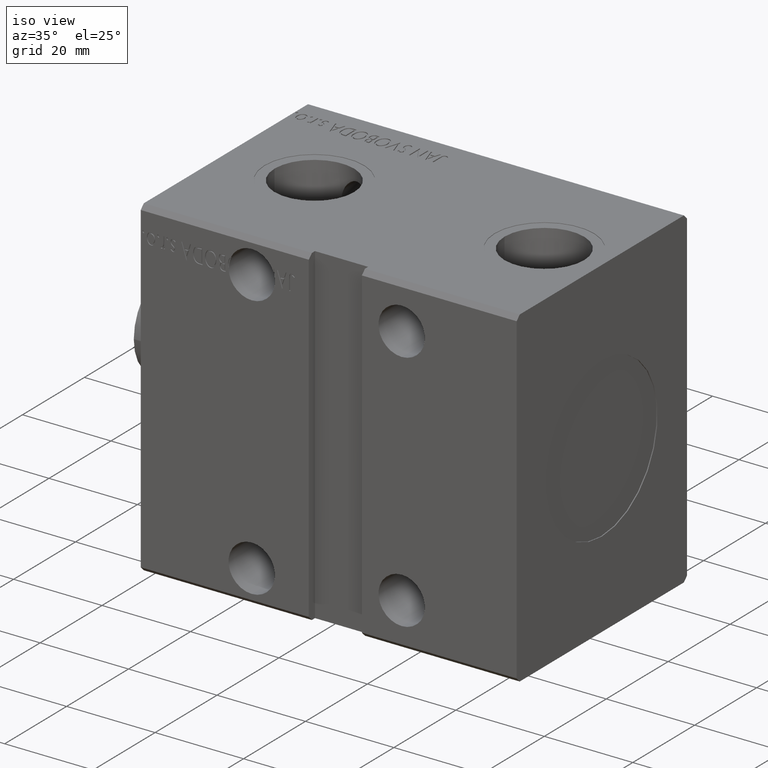
[diagram: clean part render]
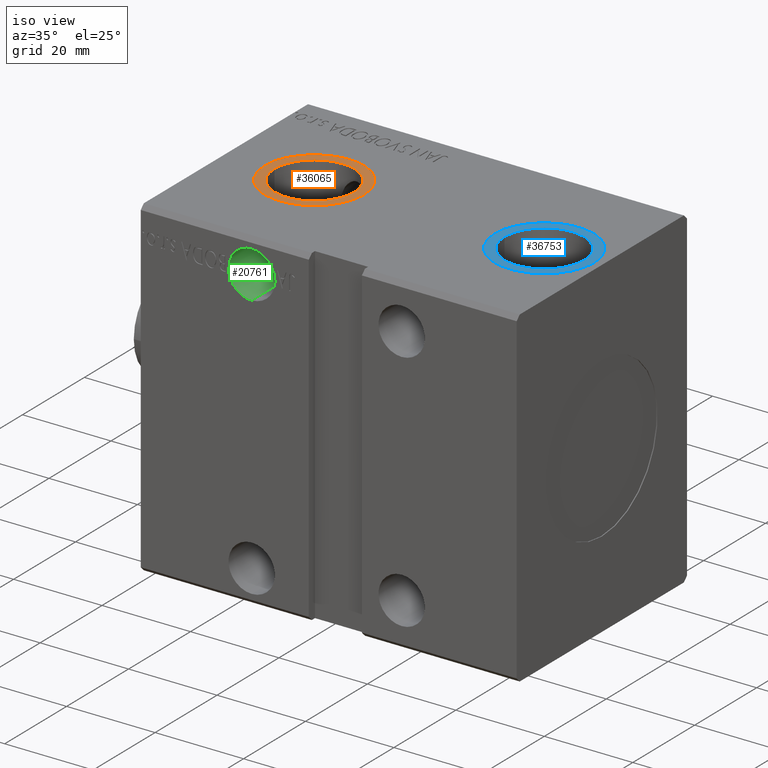
[diagram: same view with three faces highlighted in distinct colors, each labeled with its STEP entity id]
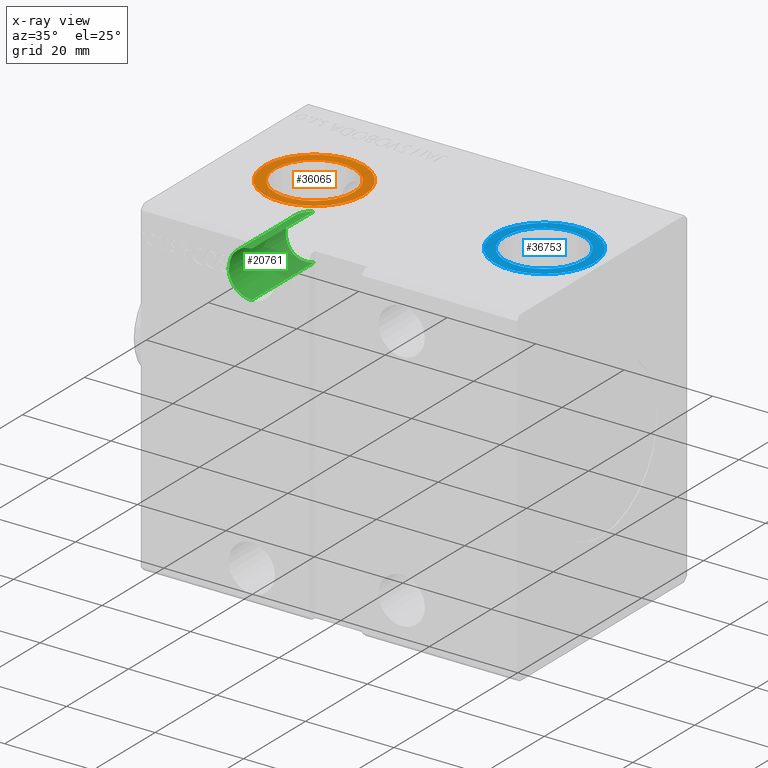
[diagram: x-ray of the same camera — body ghosted, the three highlighted faces saturated]
A machine part, iso view with three faces highlighted in distinct colors.
The next image is the same camera in x-ray (body ghosted, the three faces saturated) — at least one of them is partly hidden behind the body in this view.
Their STEP definitions:

[orange] entity #36065 — the highlighted planar face has unit normal (0, 0, 1).
#1152 = CIRCLE ( 'NONE', #35760, 11.24999999999999645 ) ;
#1271 = ORIENTED_EDGE ( 'NONE', *, *, #25907, .T. ) ;
#1363 = VERTEX_POINT ( 'NONE', #28284 ) ;
#2680 = CARTESIAN_POINT ( 'NONE',  ( 28.99999999999999645, 2.602085213965210642E-15, 37.40000000000000568 ) ) ;
#5207 = DIRECTION ( 'NONE',  ( 0.000000000000000000, 0.000000000000000000, 1.000000000000000000 ) ) ;
#5851 = AXIS2_PLACEMENT_3D ( 'NONE', #22002, #6452, #33855 ) ;
#6452 = DIRECTION ( 'NONE',  ( 0.000000000000000000, 0.000000000000000000, 1.000000000000000000 ) ) ;
#7076 = CARTESIAN_POINT ( 'NONE',  ( 19.99999999999999645, 2.602085213965210642E-15, 37.40000000000000568 ) ) ;
#7885 = DIRECTION ( 'NONE',  ( 0.000000000000000000, 0.000000000000000000, 1.000000000000000000 ) ) ;
#9097 = EDGE_LOOP ( 'NONE', ( #24672, #15954 ) ) ;
#9214 = FACE_OUTER_BOUND ( 'NONE', #10925, .T. ) ;
#10925 = EDGE_LOOP ( 'NONE', ( #36605, #1271 ) ) ;
#12945 = CARTESIAN_POINT ( 'NONE',  ( 8.749999999999998224, 3.979812863005982636E-15, 37.40000000000000568 ) ) ;
#14726 = CARTESIAN_POINT ( 'NONE',  ( 19.99999999999999645, 2.602085213965210642E-15, 37.40000000000000568 ) ) ;
#14860 = CIRCLE ( 'NONE', #32478, 11.24999999999999645 ) ;
#15350 = FACE_BOUND ( 'NONE', #9097, .T. ) ;
#15954 = ORIENTED_EDGE ( 'NONE', *, *, #33213, .F. ) ;
#16883 = DIRECTION ( 'NONE',  ( 1.000000000000000000, 0.000000000000000000, 0.000000000000000000 ) ) ;
#18405 = PLANE ( 'NONE',  #37852 ) ;
#19494 = AXIS2_PLACEMENT_3D ( 'NONE', #27116, #5207, #27319 ) ;
#20891 = DIRECTION ( 'NONE',  ( 0.000000000000000000, 0.000000000000000000, 1.000000000000000000 ) ) ;
#21211 = VERTEX_POINT ( 'NONE', #12945 ) ;
#21700 = DIRECTION ( 'NONE',  ( 0.000000000000000000, 0.000000000000000000, 1.000000000000000000 ) ) ;
#22002 = CARTESIAN_POINT ( 'NONE',  ( 19.99999999999999645, 2.602085213965210642E-15, 37.40000000000000568 ) ) ;
#22214 = CIRCLE ( 'NONE', #5851, 9.000000000000001776 ) ;
#24672 = ORIENTED_EDGE ( 'NONE', *, *, #36955, .F. ) ;
#25907 = EDGE_CURVE ( 'NONE', #21211, #1363, #1152, .T. ) ;
#26050 = CIRCLE ( 'NONE', #19494, 9.000000000000001776 ) ;
#27116 = CARTESIAN_POINT ( 'NONE',  ( 19.99999999999999645, 2.602085213965210642E-15, 37.40000000000000568 ) ) ;
#27319 = DIRECTION ( 'NONE',  ( 1.000000000000000000, 0.000000000000000000, 0.000000000000000000 ) ) ;
#27643 = DIRECTION ( 'NONE',  ( 1.000000000000000000, 0.000000000000000000, -0.000000000000000000 ) ) ;
#28284 = CARTESIAN_POINT ( 'NONE',  ( 31.24999999999999289, 2.602085213965210642E-15, 37.40000000000000568 ) ) ;
#30620 = VERTEX_POINT ( 'NONE', #2680 ) ;
#30872 = CARTESIAN_POINT ( 'NONE',  ( 10.99999999999999467, 3.704267333197828553E-15, 37.40000000000000568 ) ) ;
#31502 = EDGE_CURVE ( 'NONE', #1363, #21211, #14860, .T. ) ;
#32478 = AXIS2_PLACEMENT_3D ( 'NONE', #37035, #20891, #36627 ) ;
#32738 = VERTEX_POINT ( 'NONE', #30872 ) ;
#33213 = EDGE_CURVE ( 'NONE', #32738, #30620, #26050, .T. ) ;
#33855 = DIRECTION ( 'NONE',  ( 1.000000000000000000, 0.000000000000000000, 0.000000000000000000 ) ) ;
#35760 = AXIS2_PLACEMENT_3D ( 'NONE', #7076, #7885, #16883 ) ;
#36065 = ADVANCED_FACE ( 'NONE', ( #15350, #9214 ), #18405, .T. ) ;
#36605 = ORIENTED_EDGE ( 'NONE', *, *, #31502, .T. ) ;
#36627 = DIRECTION ( 'NONE',  ( 1.000000000000000000, 0.000000000000000000, 0.000000000000000000 ) ) ;
#36955 = EDGE_CURVE ( 'NONE', #30620, #32738, #22214, .T. ) ;
#37035 = CARTESIAN_POINT ( 'NONE',  ( 19.99999999999999645, 2.602085213965210642E-15, 37.40000000000000568 ) ) ;
#37852 = AXIS2_PLACEMENT_3D ( 'NONE', #14726, #21700, #27643 ) ;

[blue] entity #36753 — the highlighted planar face has unit normal (0, 0, 1).
#391 = FACE_BOUND ( 'NONE', #6145, .T. ) ;
#1456 = EDGE_CURVE ( 'NONE', #37585, #21020, #34680, .T. ) ;
#1680 = DIRECTION ( 'NONE',  ( 0.000000000000000000, 0.000000000000000000, 1.000000000000000000 ) ) ;
#3040 = DIRECTION ( 'NONE',  ( 1.000000000000000000, 0.000000000000000000, -0.000000000000000000 ) ) ;
#6145 = EDGE_LOOP ( 'NONE', ( #23017, #37006 ) ) ;
#6156 = CIRCLE ( 'NONE', #36823, 11.24999999999999645 ) ;
#6725 = EDGE_CURVE ( 'NONE', #9850, #34091, #22425, .T. ) ;
#7161 = AXIS2_PLACEMENT_3D ( 'NONE', #25333, #9163, #3040 ) ;
#8147 = ORIENTED_EDGE ( 'NONE', *, *, #16743, .T. ) ;
#9163 = DIRECTION ( 'NONE',  ( 0.000000000000000000, 0.000000000000000000, 1.000000000000000000 ) ) ;
#9572 = FACE_OUTER_BOUND ( 'NONE', #22751, .T. ) ;
#9850 = VERTEX_POINT ( 'NONE', #19300 ) ;
#10680 = DIRECTION ( 'NONE',  ( 1.000000000000000000, 0.000000000000000000, 0.000000000000000000 ) ) ;
#12515 = CARTESIAN_POINT ( 'NONE',  ( 72.00000000000001421, -3.300664193009419462E-16, 37.40000000000000568 ) ) ;
#13283 = AXIS2_PLACEMENT_3D ( 'NONE', #39450, #35987, #36187 ) ;
#13351 = CARTESIAN_POINT ( 'NONE',  ( 83.25000000000000000, -3.300664193009419462E-16, 37.40000000000000568 ) ) ;
#16743 = EDGE_CURVE ( 'NONE', #21020, #37585, #6156, .T. ) ;
#17757 = ORIENTED_EDGE ( 'NONE', *, *, #1456, .T. ) ;
#18275 = EDGE_CURVE ( 'NONE', #34091, #9850, #23830, .T. ) ;
#18445 = CARTESIAN_POINT ( 'NONE',  ( 72.00000000000001421, -3.300664193009419462E-16, 37.40000000000000568 ) ) ;
#19300 = CARTESIAN_POINT ( 'NONE',  ( 63.00000000000001421, 7.721156999316754719E-16, 37.40000000000000568 ) ) ;
#19545 = CARTESIAN_POINT ( 'NONE',  ( 60.75000000000002132, 1.047661229739829654E-15, 37.40000000000000568 ) ) ;
#21020 = VERTEX_POINT ( 'NONE', #19545 ) ;
#22425 = CIRCLE ( 'NONE', #13283, 8.999999999999994671 ) ;
#22751 = EDGE_LOOP ( 'NONE', ( #17757, #8147 ) ) ;
#23017 = ORIENTED_EDGE ( 'NONE', *, *, #18275, .F. ) ;
#23830 = CIRCLE ( 'NONE', #30317, 8.999999999999994671 ) ;
#25333 = CARTESIAN_POINT ( 'NONE',  ( 72.00000000000001421, -3.300664193009419462E-16, 37.40000000000000568 ) ) ;
#28082 = DIRECTION ( 'NONE',  ( 0.000000000000000000, 0.000000000000000000, 1.000000000000000000 ) ) ;
#29039 = CARTESIAN_POINT ( 'NONE',  ( 81.00000000000000000, -3.300664193009419462E-16, 37.40000000000000568 ) ) ;
#30317 = AXIS2_PLACEMENT_3D ( 'NONE', #35022, #1680, #10680 ) ;
#30637 = PLANE ( 'NONE',  #7161 ) ;
#33578 = DIRECTION ( 'NONE',  ( 1.000000000000000000, 0.000000000000000000, 0.000000000000000000 ) ) ;
#34091 = VERTEX_POINT ( 'NONE', #29039 ) ;
#34397 = DIRECTION ( 'NONE',  ( 1.000000000000000000, 0.000000000000000000, 0.000000000000000000 ) ) ;
#34680 = CIRCLE ( 'NONE', #39901, 11.24999999999999645 ) ;
#35022 = CARTESIAN_POINT ( 'NONE',  ( 72.00000000000001421, -3.300664193009419462E-16, 37.40000000000000568 ) ) ;
#35987 = DIRECTION ( 'NONE',  ( 0.000000000000000000, 0.000000000000000000, 1.000000000000000000 ) ) ;
#36187 = DIRECTION ( 'NONE',  ( 1.000000000000000000, 0.000000000000000000, 0.000000000000000000 ) ) ;
#36753 = ADVANCED_FACE ( 'NONE', ( #391, #9572 ), #30637, .T. ) ;
#36823 = AXIS2_PLACEMENT_3D ( 'NONE', #18445, #37673, #33578 ) ;
#37006 = ORIENTED_EDGE ( 'NONE', *, *, #6725, .F. ) ;
#37585 = VERTEX_POINT ( 'NONE', #13351 ) ;
#37673 = DIRECTION ( 'NONE',  ( 0.000000000000000000, 0.000000000000000000, 1.000000000000000000 ) ) ;
#39450 = CARTESIAN_POINT ( 'NONE',  ( 72.00000000000001421, -3.300664193009419462E-16, 37.40000000000000568 ) ) ;
#39901 = AXIS2_PLACEMENT_3D ( 'NONE', #12515, #28082, #34397 ) ;

[green] entity #20761 — the highlighted cylindrical surface (edge-blend (fillet) strip) has radius 5.25 mm, axis along (-0, -1, -0).
#384 = ORIENTED_EDGE ( 'NONE', *, *, #15304, .F. ) ;
#402 = DIRECTION ( 'NONE',  ( -0.000000000000000000, 1.000000000000000000, 5.507058653894625853E-17 ) ) ;
#1562 = LINE ( 'NONE', #4414, #22773 ) ;
#1575 = CARTESIAN_POINT ( 'NONE',  ( 25.09203633362804808, -7.420994945222091133, 35.24999999999997868 ) ) ;
#1775 = CARTESIAN_POINT ( 'NONE',  ( 22.62104664115696906, -8.615385311132229162, 25.35465789735583897 ) ) ;
#1968 = CARTESIAN_POINT ( 'NONE',  ( 20.13817840211501320, -8.999098950654449425, 31.74746810760185056 ) ) ;
#2516 = ORIENTED_EDGE ( 'NONE', *, *, #9573, .F. ) ;
#2774 = DIRECTION ( 'NONE',  ( 4.945004689201477110E-13, 1.000000000000000000, -6.377830073556759772E-15 ) ) ;
#3627 = AXIS2_PLACEMENT_3D ( 'NONE', #18314, #21193, #39603 ) ;
#4003 = CARTESIAN_POINT ( 'NONE',  ( 25.09203633362805519, -27.50000000000000355, 29.99999999999997868 ) ) ;
#4414 = CARTESIAN_POINT ( 'NONE',  ( 25.09203633362805519, 62.50000000000002842, 35.24999999999998579 ) ) ;
#4592 = DIRECTION ( 'NONE',  ( 0.000000000000000000, 0.000000000000000000, 1.000000000000000000 ) ) ;
#5220 = CARTESIAN_POINT ( 'NONE',  ( 23.86602028656185581, -8.134944551344382546, 35.11461261889599683 ) ) ;
#5419 = CARTESIAN_POINT ( 'NONE',  ( 20.58968976914664140, -8.982993074691000501, 27.27649309720404958 ) ) ;
#5461 = AXIS2_PLACEMENT_3D ( 'NONE', #4003, #16874, #19553 ) ;
#5572 = CARTESIAN_POINT ( 'NONE',  ( 25.09203633362804808, -7.420994945222091133, 35.24999999999997868 ) ) ;
#5580 = EDGE_CURVE ( 'NONE', #20338, #35748, #33490, .T. ) ;
#5784 = CARTESIAN_POINT ( 'NONE',  ( 25.09203633362804808, -7.420994945222091133, 24.74999999999997868 ) ) ;
#5786 = VECTOR ( 'NONE', #5976, 1000.000000000000000 ) ;
#5976 = DIRECTION ( 'NONE',  ( -0.000000000000000000, -1.000000000000000000, -5.507058653894626469E-17 ) ) ;
#7097 = CARTESIAN_POINT ( 'NONE',  ( 24.49599531087176629, -7.804554342145856971, 24.77426579356976788 ) ) ;
#7592 = VERTEX_POINT ( 'NONE', #37189 ) ;
#7683 = DIRECTION ( 'NONE',  ( -0.000000000000000000, -1.000000000000000000, -5.507058653894626469E-17 ) ) ;
#7700 = CARTESIAN_POINT ( 'NONE',  ( 22.91709886188065681, -8.520850105509387262, 34.79020149781009508 ) ) ;
#7904 = CARTESIAN_POINT ( 'NONE',  ( 22.92979556438309885, -8.516301823348774391, 25.20441460581357518 ) ) ;
#8103 = CARTESIAN_POINT ( 'NONE',  ( 23.39622974752942142, -8.336270041263025732, 25.02864745498526844 ) ) ;
#8296 = CARTESIAN_POINT ( 'NONE',  ( 22.61092292266559411, -8.618343157016504108, 34.63969629121171323 ) ) ;
#8677 = VERTEX_POINT ( 'NONE', #33972 ) ;
#9122 = CYLINDRICAL_SURFACE ( 'NONE', #3627, 5.249999999999997335 ) ;
#9185 = ORIENTED_EDGE ( 'NONE', *, *, #33107, .T. ) ;
#9573 = EDGE_CURVE ( 'NONE', #20001, #13272, #23133, .T. ) ;
#9586 = CARTESIAN_POINT ( 'NONE',  ( 25.09203633362805519, -27.50000000000000355, 29.99999999999997868 ) ) ;
#10167 = CARTESIAN_POINT ( 'NONE',  ( 25.09203633362804808, -7.420994945222091133, 24.74999999999997868 ) ) ;
#10781 = CARTESIAN_POINT ( 'NONE',  ( 20.02349551826655016, -9.000258351923884348, 28.58627726699519656 ) ) ;
#11165 = CARTESIAN_POINT ( 'NONE',  ( 20.38783076300662600, -27.30000000000000426, 32.33086892581645344 ) ) ;
#11175 = AXIS2_PLACEMENT_3D ( 'NONE', #9586, #402, #4592 ) ;
#11178 = CARTESIAN_POINT ( 'NONE',  ( 20.99504541613164221, -8.947195956249229809, 33.30232403966322607 ) ) ;
#11360 = LINE ( 'NONE', #11165, #15911 ) ;
#11373 = CARTESIAN_POINT ( 'NONE',  ( 21.23439684129989047, -8.918754284298451296, 26.42147726131731389 ) ) ;
#11564 = CARTESIAN_POINT ( 'NONE',  ( 20.41054497299041159, -8.991726556505645007, 32.40247276693564515 ) ) ;
#11565 = CARTESIAN_POINT ( 'NONE',  ( 25.09203633362805519, -27.30000000000148930, 29.99999999999997868 ) ) ;
#11702 = CARTESIAN_POINT ( 'NONE',  ( 25.09203633362805519, 62.50000000000002842, 24.74999999999998224 ) ) ;
#11854 = CARTESIAN_POINT ( 'NONE',  ( 25.09203633362805519, -27.50000000000000355, 35.24999999999997868 ) ) ;
#12579 = CARTESIAN_POINT ( 'NONE',  ( 25.09203633362805519, -27.50000000000000355, 24.74999999999997868 ) ) ;
#12848 = AXIS2_PLACEMENT_3D ( 'NONE', #11565, #2774, #23669 ) ;
#13272 = VERTEX_POINT ( 'NONE', #11854 ) ;
#14089 = VERTEX_POINT ( 'NONE', #12579 ) ;
#14241 = CARTESIAN_POINT ( 'NONE',  ( 22.02232615522974868, -8.775132717062890109, 34.27312354763812863 ) ) ;
#14766 = LINE ( 'NONE', #11702, #5786 ) ;
#14832 = CARTESIAN_POINT ( 'NONE',  ( 21.74839543080125281, -8.832385123116882397, 25.93708565719353132 ) ) ;
#15304 = EDGE_CURVE ( 'NONE', #7592, #20001, #11360, .T. ) ;
#15911 = VECTOR ( 'NONE', #20762, 1000.000000000000000 ) ;
#16669 = DIRECTION ( 'NONE',  ( 0.000000000000000000, 1.000000000000000000, 0.000000000000000000 ) ) ;
#16701 = CARTESIAN_POINT ( 'NONE',  ( 23.55276053657843249, -8.270894365227725586, 24.97807719336850596 ) ) ;
#16874 = DIRECTION ( 'NONE',  ( -0.000000000000000000, 1.000000000000000000, 5.507058653894625853E-17 ) ) ;
#17888 = CARTESIAN_POINT ( 'NONE',  ( 19.84213573433366307, -8.998615387017533607, 29.64267719973877746 ) ) ;
#18314 = CARTESIAN_POINT ( 'NONE',  ( 25.09203633362805519, 62.50000000000002842, 29.99999999999998224 ) ) ;
#19143 = LINE ( 'NONE', #32216, #29288 ) ;
#19553 = DIRECTION ( 'NONE',  ( 0.000000000000000000, 0.000000000000000000, 1.000000000000000000 ) ) ;
#20001 = VERTEX_POINT ( 'NONE', #39392 ) ;
#20338 = VERTEX_POINT ( 'NONE', #5784 ) ;
#20380 = CARTESIAN_POINT ( 'NONE',  ( 23.54828508935445797, -8.277923967711322106, 35.02923607433940134 ) ) ;
#20584 = CARTESIAN_POINT ( 'NONE',  ( 20.20013885755469474, -8.998048002103057996, 31.91396793925213515 ) ) ;
#20761 = ADVANCED_FACE ( 'NONE', ( #35931 ), #9122, .F. ) ;
#20762 = DIRECTION ( 'NONE',  ( -0.000000000000000000, -1.000000000000000000, -0.000000000000000000 ) ) ;
#21193 = DIRECTION ( 'NONE',  ( -0.000000000000000000, -1.000000000000000000, -5.507058653894626469E-17 ) ) ;
#22773 = VECTOR ( 'NONE', #7683, 1000.000000000000000 ) ;
#23133 = CIRCLE ( 'NONE', #5461, 5.249999999999997335 ) ;
#23261 = CARTESIAN_POINT ( 'NONE',  ( 19.87924173003067452, -8.999478867189379727, 29.28202341019642319 ) ) ;
#23307 = CIRCLE ( 'NONE', #12848, 5.249999999999997335 ) ;
#23669 = DIRECTION ( 'NONE',  ( 1.000000000000000000, -4.943135847735818958E-13, 0.000000000000000000 ) ) ;
#23751 = EDGE_CURVE ( 'NONE', #8677, #7592, #23307, .T. ) ;
#24204 = VERTEX_POINT ( 'NONE', #35829 ) ;
#25417 = ORIENTED_EDGE ( 'NONE', *, *, #23751, .F. ) ;
#25730 = CARTESIAN_POINT ( 'NONE',  ( 24.79917876354309314, -7.621943928270621171, 24.74999999999998934 ) ) ;
#26732 = CARTESIAN_POINT ( 'NONE',  ( 19.84193734086337102, -8.998611904378899240, 30.35439589759105417 ) ) ;
#26876 = ORIENTED_EDGE ( 'NONE', *, *, #5580, .T. ) ;
#28617 = EDGE_CURVE ( 'NONE', #24204, #8677, #19143, .T. ) ;
#28651 = ORIENTED_EDGE ( 'NONE', *, *, #39116, .F. ) ;
#28998 = CARTESIAN_POINT ( 'NONE',  ( 24.02634379864786851, -8.051075468147841363, 24.85684288154119415 ) ) ;
#29288 = VECTOR ( 'NONE', #16669, 1000.000000000000000 ) ;
#29598 = CARTESIAN_POINT ( 'NONE',  ( 22.02629097258726887, -8.774331567065633664, 25.72376348968467852 ) ) ;
#29645 = ORIENTED_EDGE ( 'NONE', *, *, #28617, .F. ) ;
#29797 = CARTESIAN_POINT ( 'NONE',  ( 21.73812678015694289, -8.834376431490092330, 34.05437528097233013 ) ) ;
#29992 = CARTESIAN_POINT ( 'NONE',  ( 19.87764831532579279, -8.999455828191258888, 30.70729944726455685 ) ) ;
#30184 = CARTESIAN_POINT ( 'NONE',  ( 24.79783714922905702, -7.622864498744419848, 35.24999999999999289 ) ) ;
#30384 = CARTESIAN_POINT ( 'NONE',  ( 19.98555427358230574, -9.000060283440625142, 31.23217072632390412 ) ) ;
#32216 = CARTESIAN_POINT ( 'NONE',  ( 19.84213487702729495, -27.30000000000001137, 30.03216669055490229 ) ) ;
#32272 = EDGE_LOOP ( 'NONE', ( #26876, #9185, #2516, #384, #25417, #29645, #28651, #40257 ) ) ;
#32647 = CARTESIAN_POINT ( 'NONE',  ( 20.03094145569165363, -9.000106544969387556, 31.40700811270800941 ) ) ;
#32711 = CIRCLE ( 'NONE', #11175, 5.249999999999997335 ) ;
#33044 = CARTESIAN_POINT ( 'NONE',  ( 20.58465996588545011, -8.983351467240833443, 32.71555462484207766 ) ) ;
#33107 = EDGE_CURVE ( 'NONE', #35748, #13272, #1562, .T. ) ;
#33490 = B_SPLINE_CURVE_WITH_KNOTS ( 'NONE', 3,
 ( #10167, #25730, #7097, #28998, #38389, #16701, #8103, #7904, #1775, #29598, #14832, #11373, #39590, #5419, #36513, #35920, #10781, #23261, #17888, #26732, #29992, #30384, #32647, #1968, #20584, #11564, #33044, #11178, #35726, #29797, #14241, #8296, #7700, #20380, #5220, #38790, #30184, #1575 ),
 .UNSPECIFIED., .F., .F.,
 ( 4, 2, 2, 2, 2, 2, 2, 2, 2, 2, 2, 2, 2, 2, 2, 2, 2, 2, 4 ),
 ( 0.008861490222430604830, 0.009917794491464940534, 0.01044594662598211099, 0.01097409876049928144, 0.01203040302953361888, 0.01308670729856795806, 0.01414301156760229550, 0.01519931583663663294, 0.01625562010567097038, 0.01731192437470530782, 0.01836822864373964526, 0.01889638077825681398, 0.01942453291277398270, 0.02048083718180832014, 0.02153714145084265758, 0.02259344571987699848, 0.02364974998891133592, 0.02470605425794567336, 0.02576235852698001427 ),
 .UNSPECIFIED. ) ;
#33972 = CARTESIAN_POINT ( 'NONE',  ( 19.84213487702729850, -27.29999999999889582, 30.03216669055489874 ) ) ;
#35008 = EDGE_CURVE ( 'NONE', #20338, #14089, #14766, .T. ) ;
#35726 = CARTESIAN_POINT ( 'NONE',  ( 21.22639884562007140, -8.919822728542770918, 33.56980602037864259 ) ) ;
#35748 = VERTEX_POINT ( 'NONE', #5572 ) ;
#35829 = CARTESIAN_POINT ( 'NONE',  ( 19.84213487702729850, -27.50000000000000355, 30.03216669055489874 ) ) ;
#35920 = CARTESIAN_POINT ( 'NONE',  ( 20.13023086582584398, -9.000187606818586872, 28.24725711495050362 ) ) ;
#35931 = FACE_OUTER_BOUND ( 'NONE', #32272, .T. ) ;
#36513 = CARTESIAN_POINT ( 'NONE',  ( 20.41531580104054200, -8.991543239163712897, 27.58755182822969587 ) ) ;
#37189 = CARTESIAN_POINT ( 'NONE',  ( 20.38783076300684627, -27.29999999999914806, 32.33086892581636107 ) ) ;
#38389 = CARTESIAN_POINT ( 'NONE',  ( 23.86732001579710172, -8.128569180762381663, 24.89224622794060693 ) ) ;
#38790 = CARTESIAN_POINT ( 'NONE',  ( 24.48841877963050351, -7.808811213508477955, 35.22475104072337615 ) ) ;
#39116 = EDGE_CURVE ( 'NONE', #14089, #24204, #32711, .T. ) ;
#39392 = CARTESIAN_POINT ( 'NONE',  ( 20.38783076300684627, -27.50000000000000355, 32.33086892581636107 ) ) ;
#39590 = CARTESIAN_POINT ( 'NONE',  ( 20.99747815484256463, -8.946895323764247010, 26.69497235158074844 ) ) ;
#39603 = DIRECTION ( 'NONE',  ( 0.000000000000000000, 0.000000000000000000, -1.000000000000000000 ) ) ;
#40257 = ORIENTED_EDGE ( 'NONE', *, *, #35008, .F. ) ;